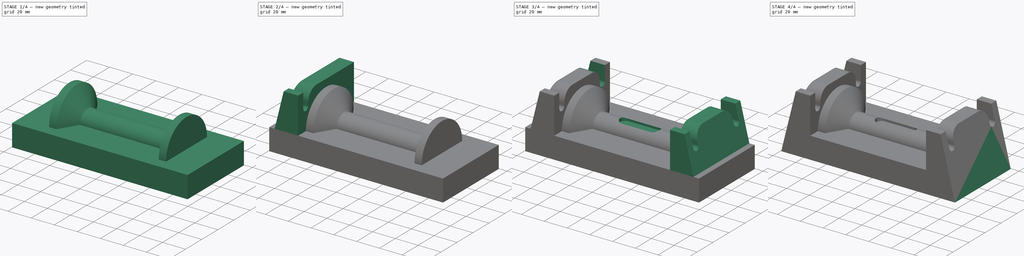
[diagram: build sequence overview — one tinted view per stage of 4, left to right]
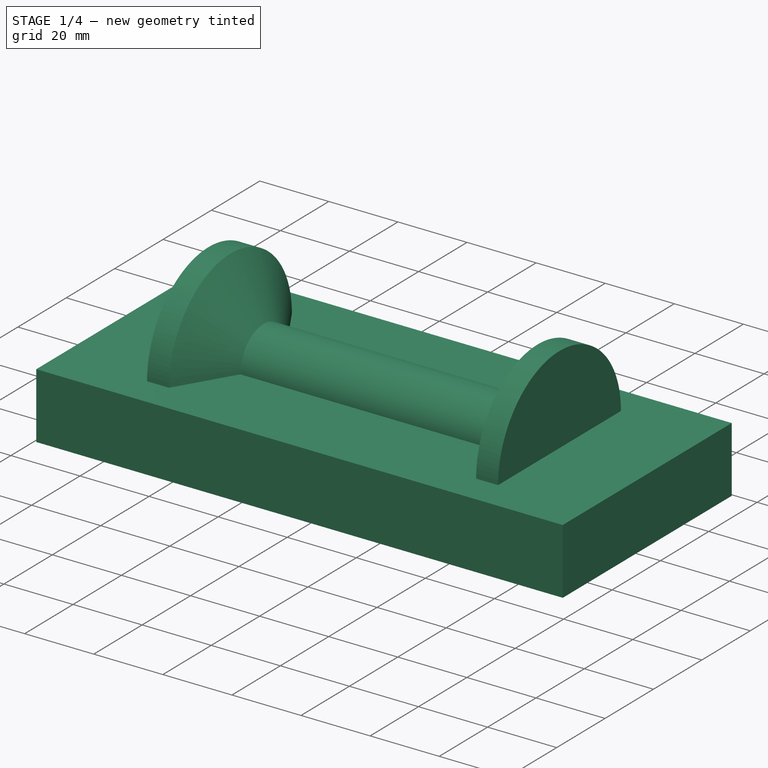
[diagram: stage 1 of 4 — iso view after this stage's code; geometry added in this stage tinted green]
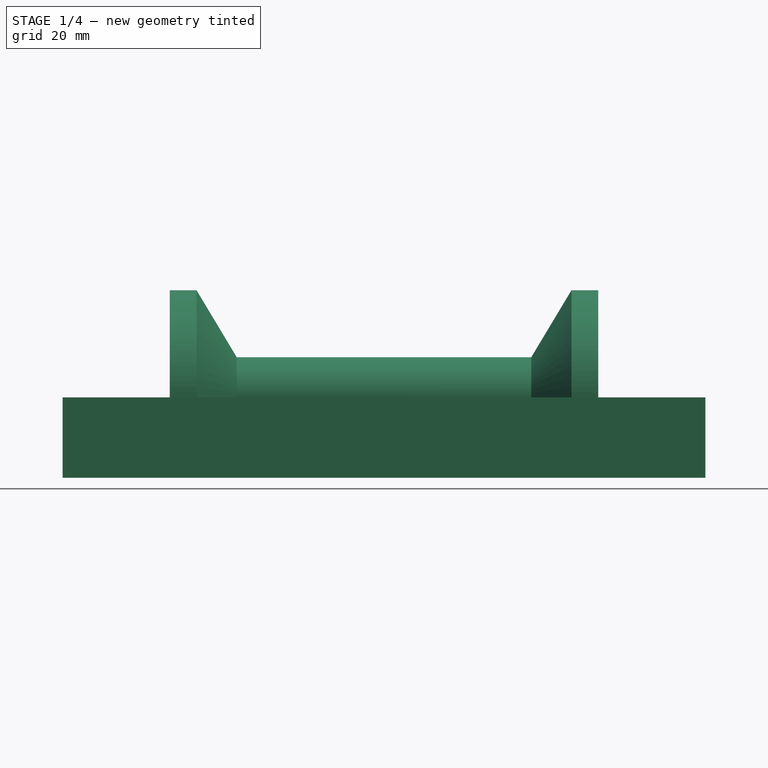
[diagram: stage 1 of 4 — front view after this stage's code; geometry added in this stage tinted green]
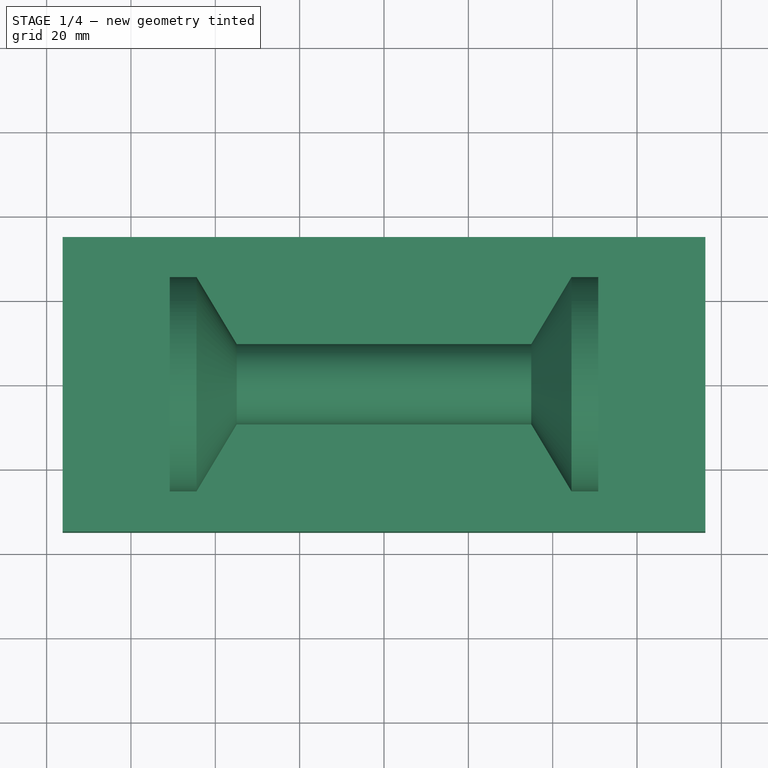
[diagram: stage 1 of 4 — top view after this stage's code; geometry added in this stage tinted green]
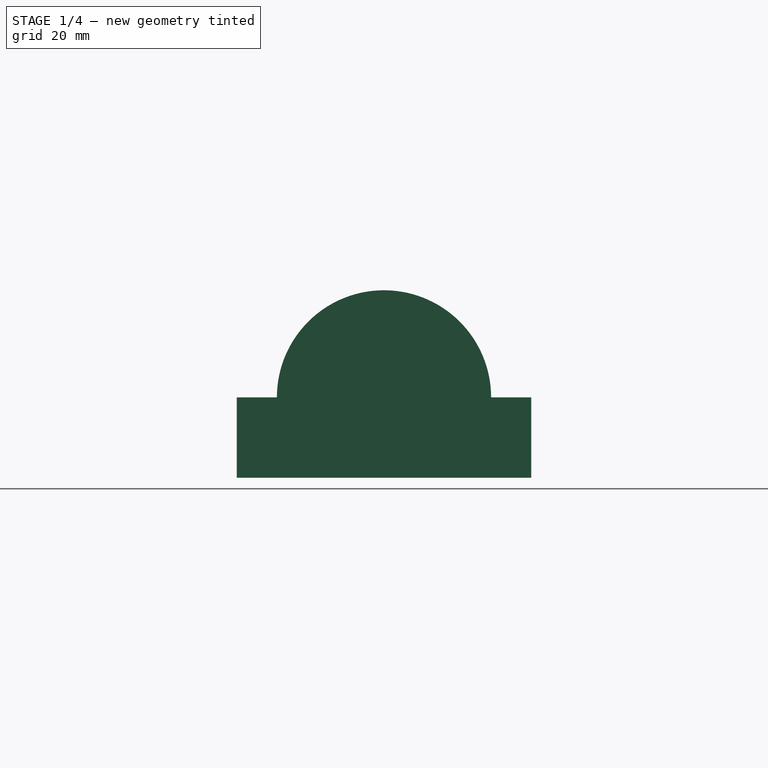
[diagram: stage 1 of 4 — right view after this stage's code; geometry added in this stage tinted green]
FCSTD DOCUMENT  (FreeCAD 1.1R42340 (Git))
Label: 22-T-54-MOLD_INSERT
License: Creative Commons Attribution-NonCommercial-ShareAlike 4.0
LicenseURL: https://creativecommons.org/licenses/by-nc-sa/4.0/
objects: Sketcher::SketchObject×5, PartDesign::Mirrored×4, PartDesign::Pocket×3, PartDesign::Pad×2, App::Point×1, PartDesign::Revolution×1, PartDesign::Body×1, App::TextDocument×1
note: 37 computed .brp shape members not serialized (recipe doc carries the construction recipe); baked Part::Feature solids carry a one-line shape summary decoded from their .brp

FEATURE [App::Point] Origin001
  Role = Origin
FEATURE [Sketcher::SketchObject] Sketch
  ArcFitTolerance = 1e-06
  AttachmentSupport = -> [Origin]
  ExternalTypes = [0]
  FullyConstrained = true
  MakeInternals = false
  MapMode = 5
  expr: Constraints[19] = 0.375 in
  expr: Constraints[20] = 1 in
  sketch-geometry (8):
    g0: LineSegment StartX=-50.8 StartY=0 StartZ=0 EndX=-50.8 EndY=25.4 EndZ=0
    g1: LineSegment StartX=-50.8 StartY=25.4 StartZ=0 EndX=-44.45 EndY=25.4 EndZ=0
    g2: LineSegment StartX=-44.45 StartY=25.4 StartZ=0 EndX=-34.925 EndY=9.525 EndZ=0
    g3: LineSegment StartX=-34.925 StartY=9.525 StartZ=0 EndX=34.925 EndY=9.525 EndZ=0
    g4: LineSegment StartX=34.925 StartY=9.525 StartZ=0 EndX=44.45 EndY=25.4 EndZ=0
    g5: LineSegment StartX=44.45 StartY=25.4 StartZ=0 EndX=50.8 EndY=25.4 EndZ=0
    g6: LineSegment StartX=50.8 StartY=25.4 StartZ=0 EndX=50.8 EndY=0 EndZ=0
    g7: LineSegment StartX=50.8 StartY=0 StartZ=0 EndX=-50.8 EndY=0 EndZ=0
  constraints (21):
    c: PointOnObject(g0,g-1)
    c: Vertical(g0)
    c: Coincident(g0,g1)
    c: Horizontal(g1)
    c: Coincident(g1,g2)
    c: Coincident(g2,g3)
    c: Coincident(g3,g4)
    c: Coincident(g4,g5)
    c: Horizontal(g5)
    c: Coincident(g5,g6)
    c: Vertical(g6)
    c: Coincident(g6,g7)
    c: Coincident(g7,g0)
    c: DistanceX(g3,g3) = 69.85
    c: Symmetric(g2,g3,g-2)
    c: Symmetric(g4,g1,g-2)
    c: Symmetric(g6,g0,g-2)
    c: DistanceX(g1,g4) = 88.9
    c: DistanceX(g0,g5) = 101.6
    c: Distance(g3,g7) = 9.525
    c: Distance(g0,g0) = 25.4
FEATURE [PartDesign::Revolution] Revolution
  Angle = 180
  Angle2 = 60
  Axis = (1,0,0)
  Base = (0,0,0)
  Profile = -> Sketch
  ReferenceAxis = -> X_Axis
  Refine = true
  Suppressed = false
  Type = 0
FEATURE [Sketcher::SketchObject] Sketch001
  ArcFitTolerance = 1e-06
  AttachmentSupport = -> [Origin]
  ExternalTypes = [0]
  FullyConstrained = true
  MakeInternals = false
  MapMode = 5
  expr: Constraints[10] = 2.75 in
  expr: Constraints[11] = 6 in
  sketch-geometry (5):
    g0: LineSegment StartX=76.2 StartY=-34.925 StartZ=0 EndX=76.2 EndY=34.925 EndZ=0
    g1: LineSegment StartX=76.2 StartY=34.925 StartZ=0 EndX=-76.2 EndY=34.925 EndZ=0
    g2: LineSegment StartX=-76.2 StartY=34.925 StartZ=0 EndX=-76.2 EndY=-34.925 EndZ=0
    g3: LineSegment StartX=-76.2 StartY=-34.925 StartZ=0 EndX=76.2 EndY=-34.925 EndZ=0
    g4: GeomPoint [constr] X=0 Y=0 Z=0
  constraints (12):
    c: Coincident(g0,g1)
    c: Coincident(g1,g2)
    c: Coincident(g2,g3)
    c: Coincident(g3,g0)
    c: Vertical(g0)
    c: Vertical(g2)
    c: Horizontal(g1)
    c: Horizontal(g3)
    c: Symmetric(g2,g0,g4)
    c: Coincident(g4,g-1)
    c: DistanceY(g2,g2) = 69.85
    c: DistanceX(g1,g1) = 152.4
FEATURE [PartDesign::Pad] Pad
  BaseFeature = -> Revolution
  Direction = (0,0,1)
  Length = 19.05
  Length2 = 10
  Profile = -> Sketch001
  ReferenceAxis = -> Sketch001 [N_Axis]
  Refine = true
  Reversed = true
  Suppressed = false
  Type = 0
  expr: Length = 0.75 in
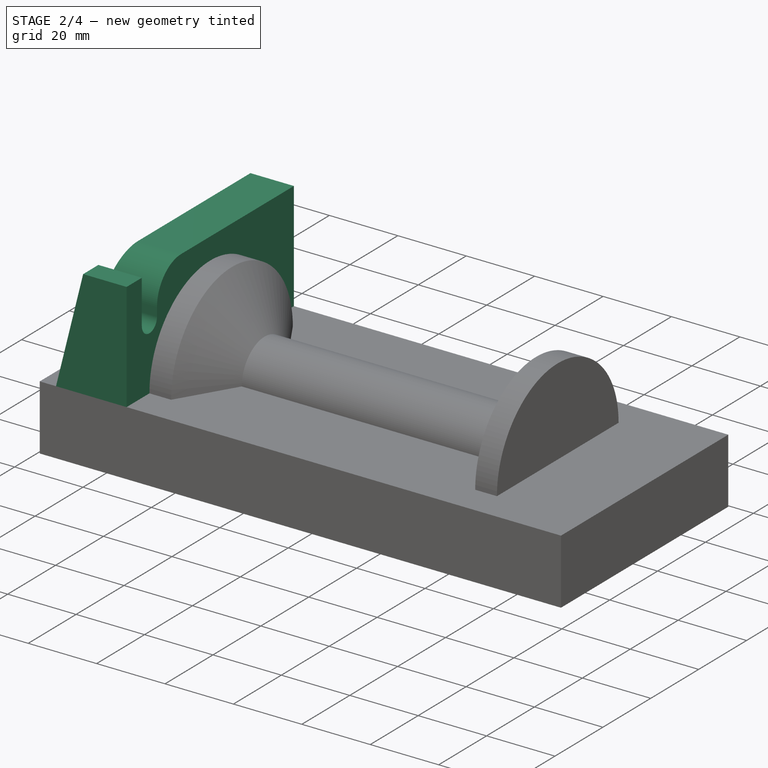
[diagram: stage 2 of 4 — iso view after this stage's code; geometry added in this stage tinted green]
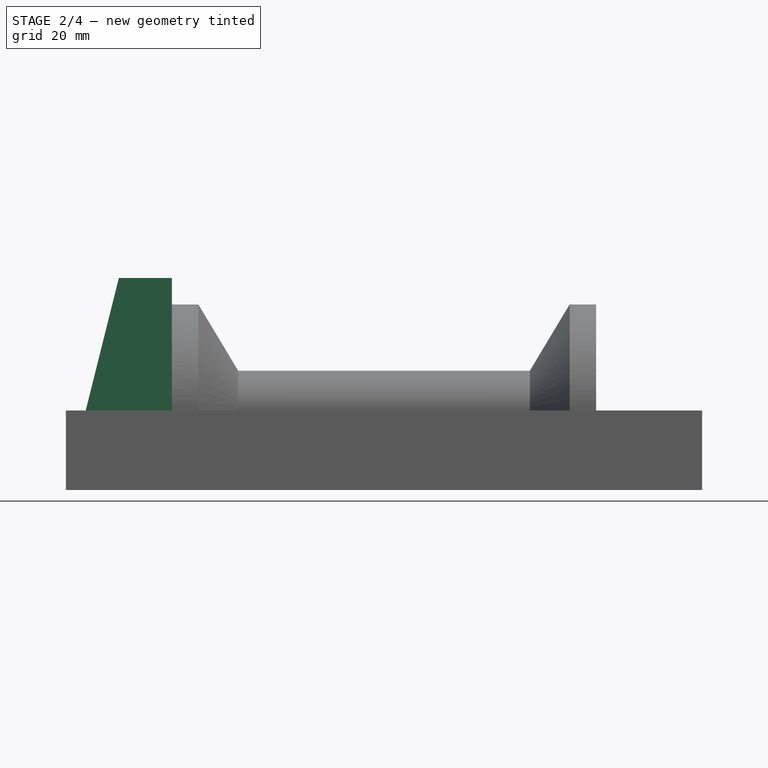
[diagram: stage 2 of 4 — front view after this stage's code; geometry added in this stage tinted green]
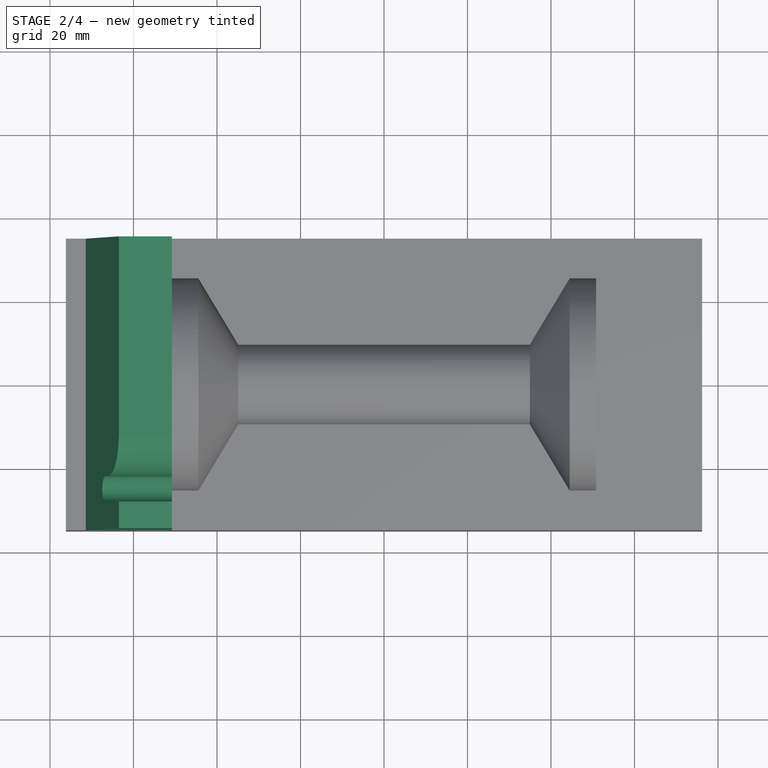
[diagram: stage 2 of 4 — top view after this stage's code; geometry added in this stage tinted green]
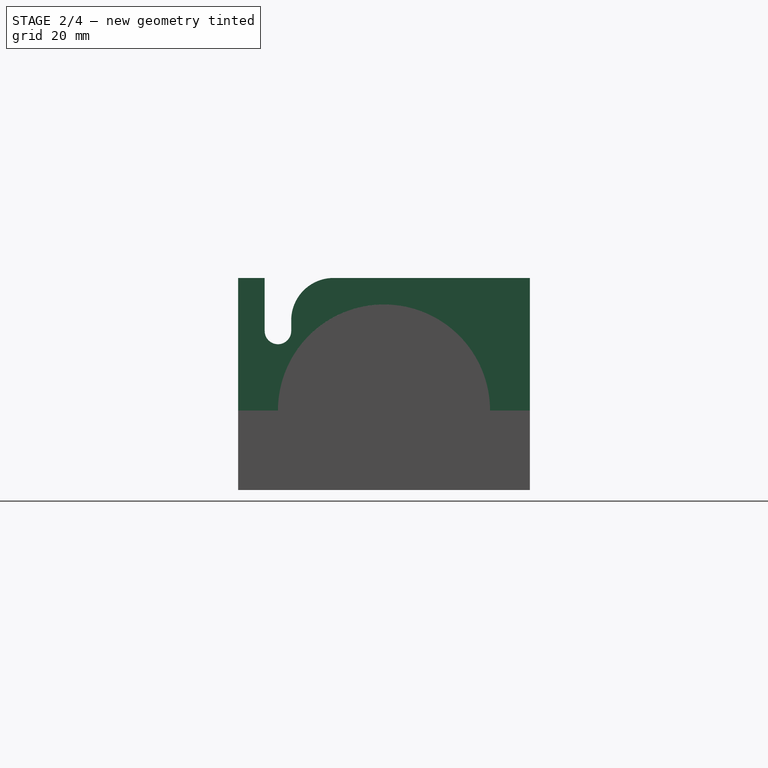
[diagram: stage 2 of 4 — right view after this stage's code; geometry added in this stage tinted green]
FEATURE [Sketcher::SketchObject] Sketch002
  ArcFitTolerance = 1e-06
  AttachmentSupport = -> [Origin]
  ExternalGeometry = -> [Pad]
  ExternalTypes = [0,0]
  FullyConstrained = true
  MakeInternals = false
  MapMode = 5
  Placement = pos=(0,0,0) rot=(1,0,0;1.5708rad)
  expr: Constraints[10] = 2.5 in
  expr: Constraints[9] = 2 in
  sketch-geometry (4):
    g0: LineSegment StartX=-76.2 StartY=-19.05 StartZ=0 EndX=-63.5 EndY=31.75 EndZ=0
    g1: LineSegment StartX=-63.5 StartY=31.75 StartZ=0 EndX=-50.8 EndY=31.75 EndZ=0
    g2: LineSegment StartX=-50.8 StartY=31.75 StartZ=0 EndX=-50.8 EndY=-19.05 EndZ=0
    g3: LineSegment StartX=-50.8 StartY=-19.05 StartZ=0 EndX=-76.2 EndY=-19.05 EndZ=0
  constraints (11):
    c: Coincident(g-4,g0)
    c: Coincident(g0,g1)
    c: Horizontal(g1)
    c: Coincident(g1,g2)
    c: PointOnObject(g2,g-4)
    c: Vertical(g2)
    c: Coincident(g2,g3)
    c: Coincident(g3,g0)
    c: PointOnObject(g-3,g2)
    c: DistanceY(g2,g2) = 50.8
    c: DistanceX(g0,g-1) = 63.5
FEATURE [PartDesign::Pad] Pad001
  BaseFeature = -> Pad
  Direction = (0,-1,2e-16)
  Length = 10
  Length2 = 10
  Midplane = true
  Profile = -> Sketch002
  ReferenceAxis = -> Sketch002 [N_Axis]
  Refine = true
  Suppressed = false
  Type = 3
  UpToFace = -> Pad [Face6]
FEATURE [PartDesign::Mirrored] Mirrored
  BaseFeature = -> Pad001
  MirrorPlane = -> XZ_Plane
  Originals = -> [Pad001]
  Refine = true
  Suppressed = false
  TransformMode = 0
FEATURE [Sketcher::SketchObject] Sketch003
  ArcFitTolerance = 1e-06
  AttachmentSupport = -> [Origin]
  ExternalTypes = [0]
  FullyConstrained = true
  MakeInternals = false
  MapMode = 5
  Placement = pos=(0,0,0) rot=(0.57735,0.57735,0.57735;2.0944rad)
  expr: Constraints[10] = 0.5 in
  expr: Constraints[11] = 0.4 in
  expr: Constraints[8] = 0.25 in
  expr: Constraints[9] = 1 in
  sketch-geometry (5):
    g0: LineSegment StartX=-28.575 StartY=31.75 StartZ=0 EndX=-28.575 EndY=19.05 EndZ=0
    g1: ArcOfCircle CenterX=-25.4 CenterY=19.05 CenterZ=0 NormalX=0 NormalY=0 NormalZ=1 AngleXU=0 Radius=3.175 StartAngle=3.14159 EndAngle=6.28319
    g2: LineSegment StartX=-22.225 StartY=19.05 StartZ=0 EndX=-22.225 EndY=21.59 EndZ=0
    g3: ArcOfCircle CenterX=-12.065 CenterY=21.59 CenterZ=0 NormalX=0 NormalY=0 NormalZ=1 AngleXU=0 Radius=10.16 StartAngle=1.5708 EndAngle=3.14159
    g4: LineSegment StartX=-28.575 StartY=31.75 StartZ=0 EndX=-12.065 EndY=31.75 EndZ=0
  constraints (13):
    c: PointOnObject(g0,g-3)
    c: Vertical(g0)
    c: Tangent(g0,g1) = -1.5708
    c: Tangent(g1,g2) = -1.5708
    c: Tangent(g2,g3) = 1.5708
    c: Coincident(g4,g0)
    c: Coincident(g4,g3)
    c: Vertical(g2)
    c: Distance(g2,g0) = 6.35
    c: Distance(g1,g-2) = 25.4
    c: DistanceY(g0,g0) = 12.7
    c: Radius(g3) = 10.16
    c: Tangent(g3,g-3) = 1.5708
FEATURE [PartDesign::Pocket] Pocket001
  BaseFeature = -> Mirrored
  Direction = (-1,0,0)
  Length = 5
  Length2 = 5
  Midplane = true
  Profile = -> Sketch003
  ReferenceAxis = -> Sketch003 [N_Axis]
  Refine = true
  Suppressed = false
  Type = 1
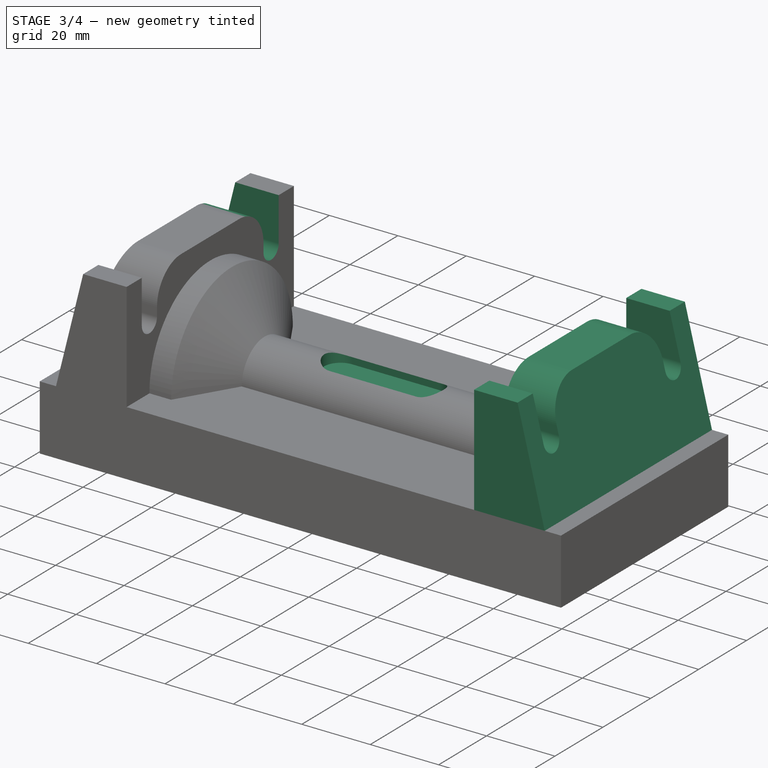
[diagram: stage 3 of 4 — iso view after this stage's code; geometry added in this stage tinted green]
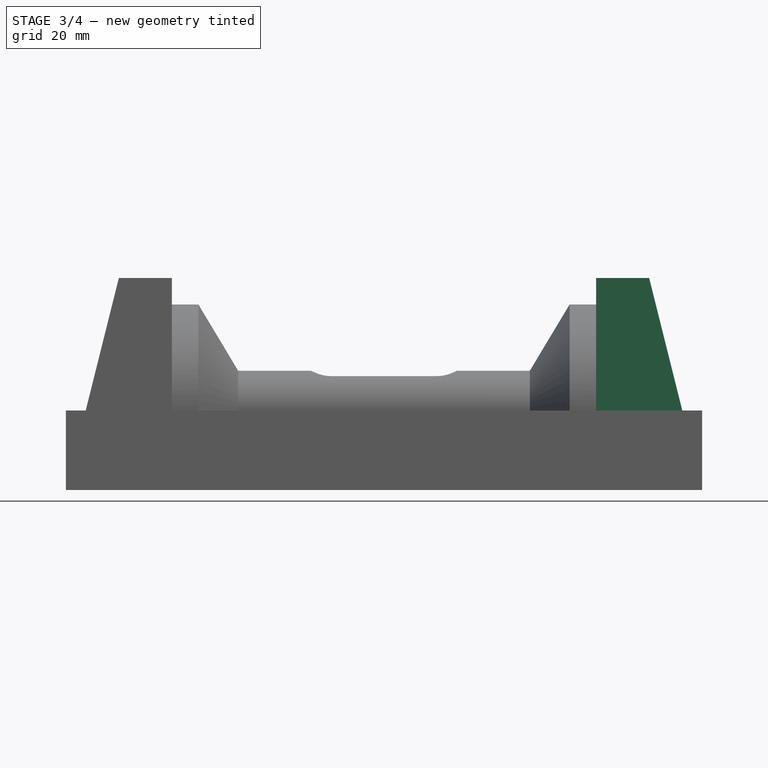
[diagram: stage 3 of 4 — front view after this stage's code; geometry added in this stage tinted green]
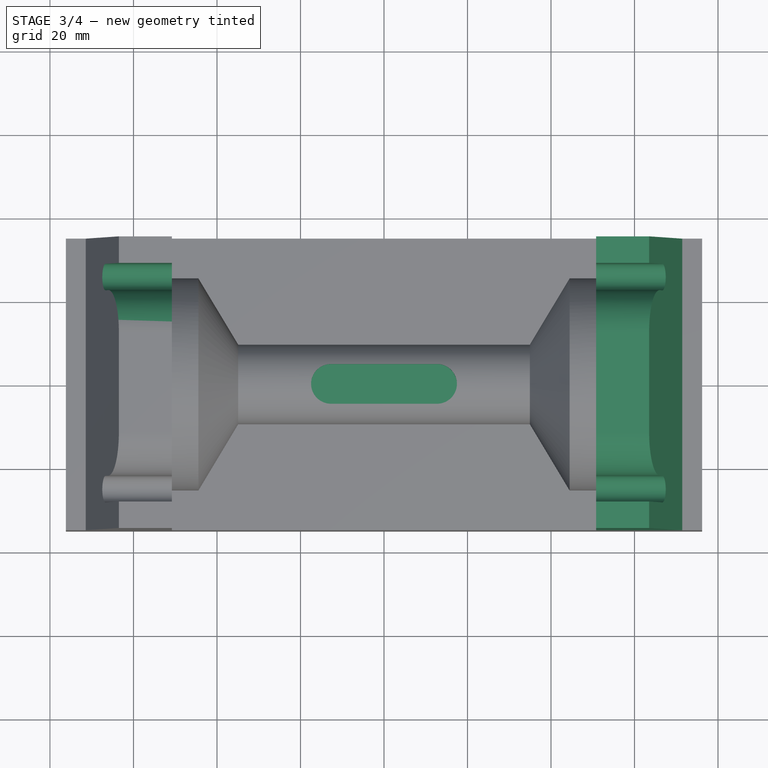
[diagram: stage 3 of 4 — top view after this stage's code; geometry added in this stage tinted green]
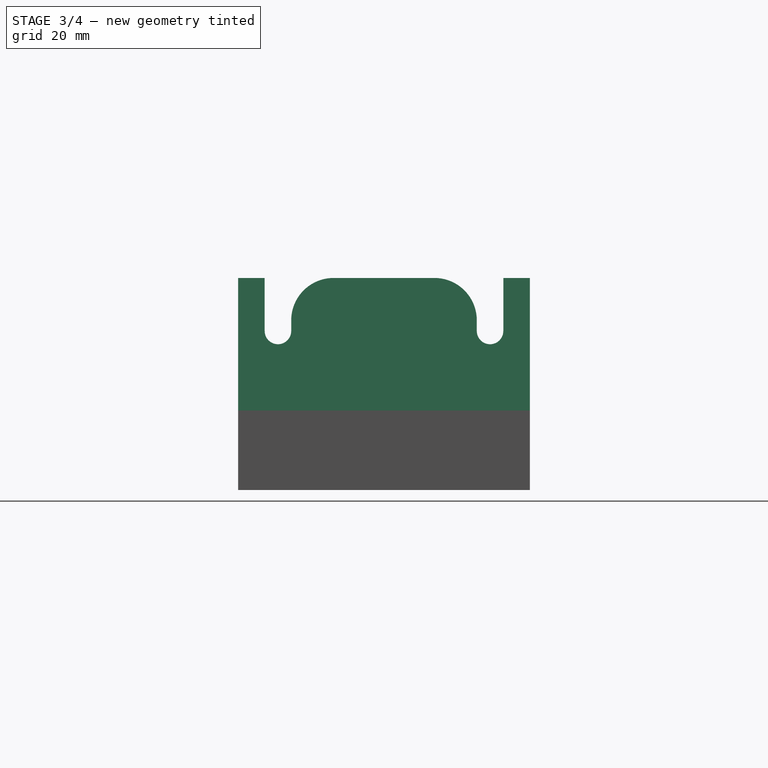
[diagram: stage 3 of 4 — right view after this stage's code; geometry added in this stage tinted green]
FEATURE [PartDesign::Mirrored] Mirrored001
  BaseFeature = -> Pocket001
  MirrorPlane = -> Sketch003 [V_Axis]
  Originals = -> [Pocket001]
  Refine = true
  Suppressed = false
  TransformMode = 0
FEATURE [Sketcher::SketchObject] Sketch004
  ArcFitTolerance = 1e-06
  AttachmentOffset = pos=(0,0,-25.4) rot=(0,0,1;0rad)
  AttachmentSupport = -> [Mirrored001]
  ExternalTypes = [0]
  FullyConstrained = true
  MakeInternals = false
  MapMode = 5
  Placement = pos=(0,0,6.35) rot=(1,0,0;3.14159rad)
  expr: Constraints[5] = 1 in
  expr: Constraints[6] = 0.375 in / 2
  sketch-geometry (4):
    g0: ArcOfCircle CenterX=12.7 CenterY=0 CenterZ=0 NormalX=0 NormalY=0 NormalZ=1 AngleXU=0 Radius=4.7625 StartAngle=4.71239 EndAngle=7.85398
    g1: ArcOfCircle CenterX=-12.7 CenterY=0 CenterZ=0 NormalX=0 NormalY=0 NormalZ=1 AngleXU=0 Radius=4.7625 StartAngle=1.5708 EndAngle=4.71239
    g2: LineSegment StartX=12.7 StartY=-4.7625 StartZ=0 EndX=-12.7 EndY=-4.7625 EndZ=0
    g3: LineSegment StartX=12.7 StartY=4.7625 StartZ=0 EndX=-12.7 EndY=4.7625 EndZ=0
  constraints (9):
    c: Tangent(g0,g2) = 1.5708
    c: Tangent(g0,g3) = -1.5708
    c: Tangent(g1,g2) = 1.5708
    c: Tangent(g1,g3) = -1.5708
    c: Equal(g0,g1)
    c: DistanceX(g3,g3) = 25.4
    c: Radius(g0) = 4.7625
    c: Symmetric(g1,g0,g-2)
    c: PointOnObject(g0,g-1)
FEATURE [PartDesign::Pocket] Pocket002
  BaseFeature = -> Mirrored001
  Direction = (0,0,1)
  Length = 5
  Length2 = 5
  Profile = -> Sketch004
  ReferenceAxis = -> Sketch004 [N_Axis]
  Refine = true
  Suppressed = false
  Type = 1
FEATURE [PartDesign::Mirrored] Mirrored002
  BaseFeature = -> Pocket002
  MirrorPlane = -> Sketch004 [V_Axis]
  Originals = -> [Pocket002]
  Refine = true
  Suppressed = false
  TransformMode = 1
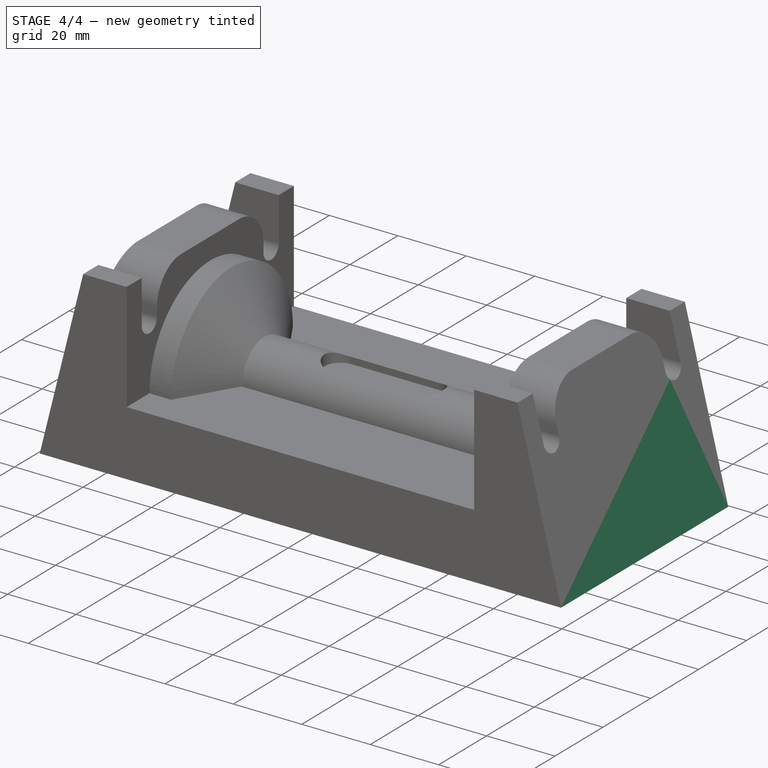
[diagram: stage 4 of 4 — iso view after this stage's code; geometry added in this stage tinted green]
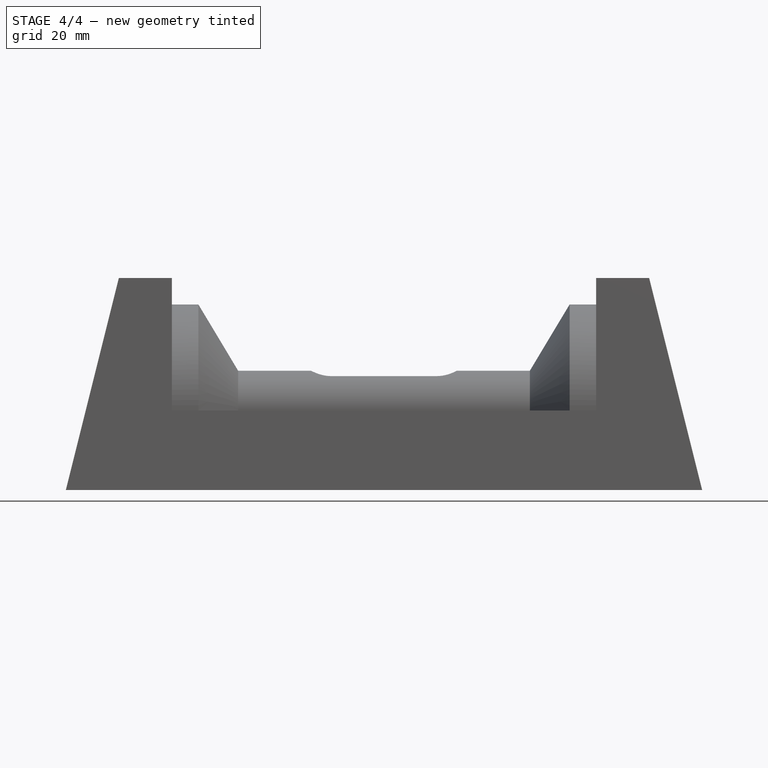
[diagram: stage 4 of 4 — front view after this stage's code; geometry added in this stage tinted green]
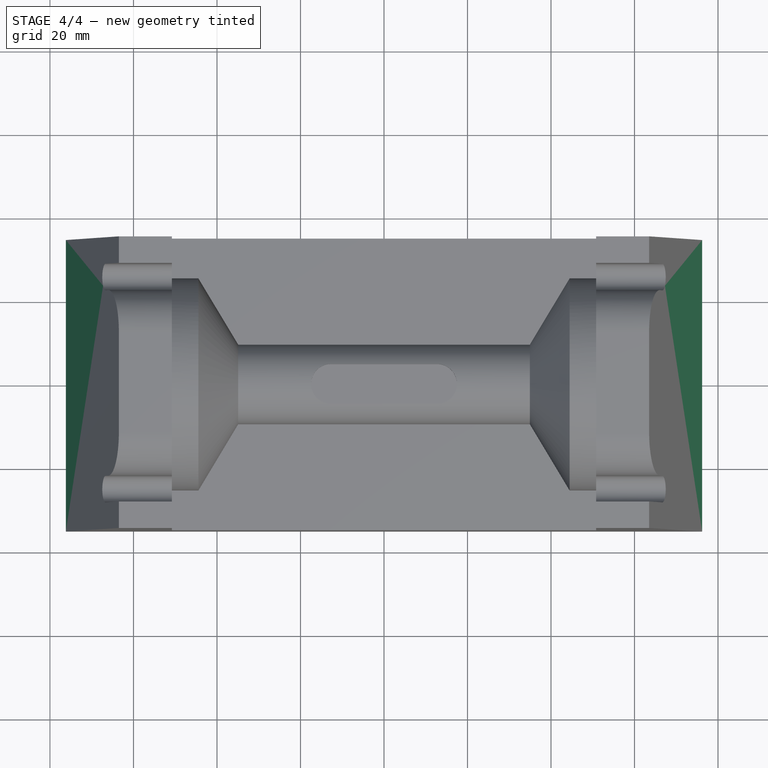
[diagram: stage 4 of 4 — top view after this stage's code; geometry added in this stage tinted green]
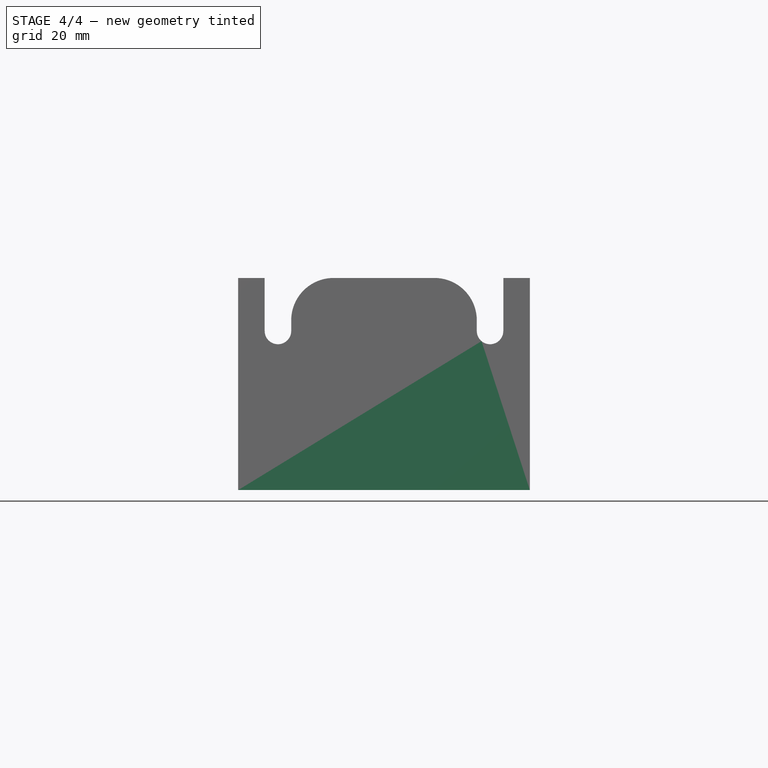
[diagram: stage 4 of 4 — right view after this stage's code; geometry added in this stage tinted green]
FEATURE [PartDesign::Pocket] Pocket
  BaseFeature = -> Mirrored002
  Direction = (0,0,-1)
  Length = 5
  Length2 = 5
  Profile = -> Mirrored002 [Face26]
  ReferenceAxis = -> Mirrored002 [Edge81]
  Refine = true
  Suppressed = false
  Type = 1
FEATURE [PartDesign::Mirrored] Mirrored003
  BaseFeature = -> Pocket
  MirrorPlane = -> YZ_Plane
  Originals = -> [Pocket]
  Refine = true
  Suppressed = false
  TransformMode = 0
FEATURE [PartDesign::Body] Body
  AllowCompound = true
  Group = -> [Sketch,Revolution,Sketch001,Pad,Sketch002,Pad001,Mirrored,Sketch003,Pocket001,Mirrored001,Sketch004,Pocket002,Mirrored002,Pocket,Mirrored003]
  Origin = -> Origin
  Tip = -> Mirrored003
FEATURE [App::TextDocument] Text_document  label="README"
  Text = uggly model, but I don't want to rework an IPS model
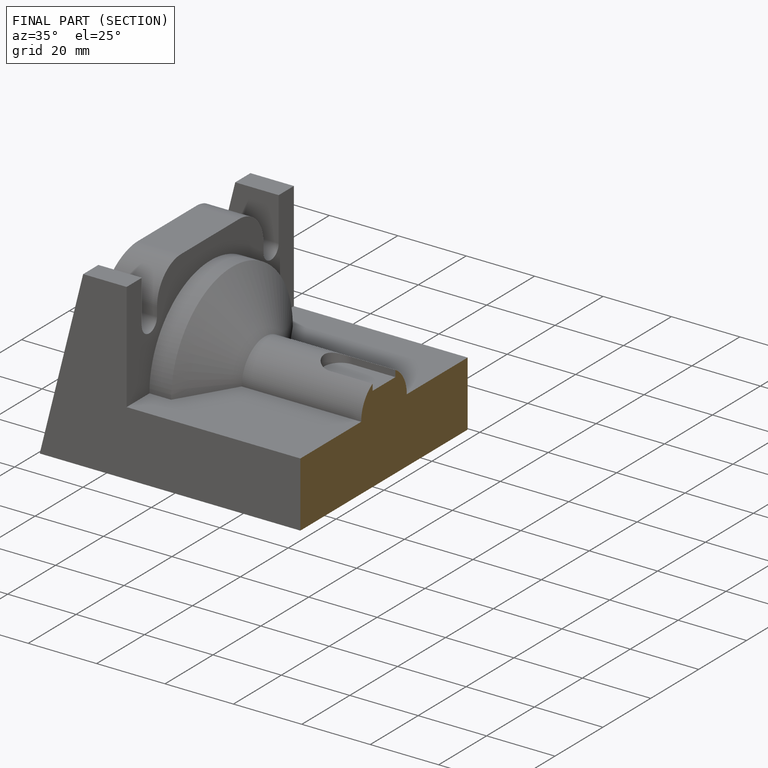
[diagram: finished part — half-section view (interior)]
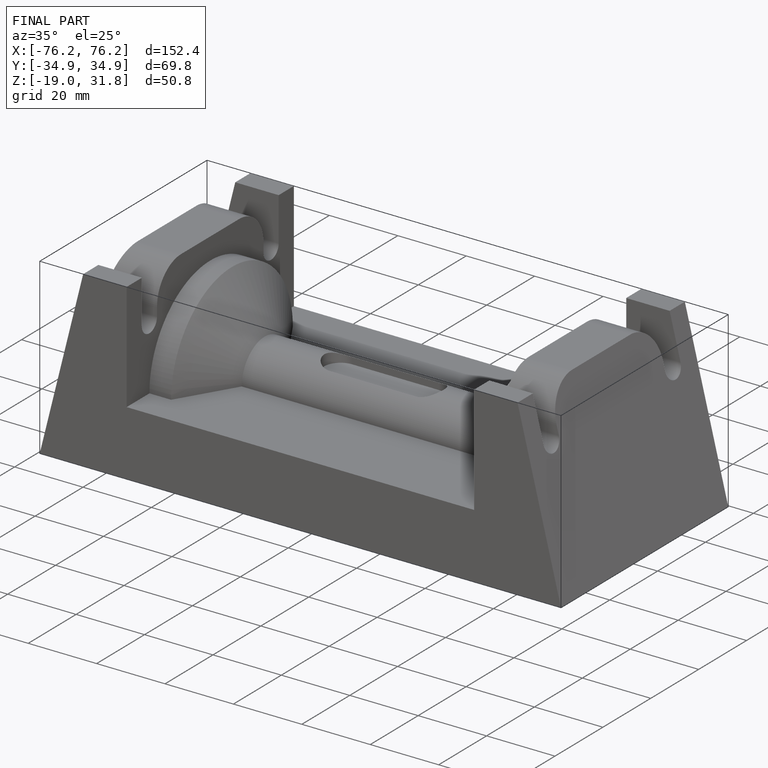
[diagram: finished part — iso view with bounding-box wireframe]
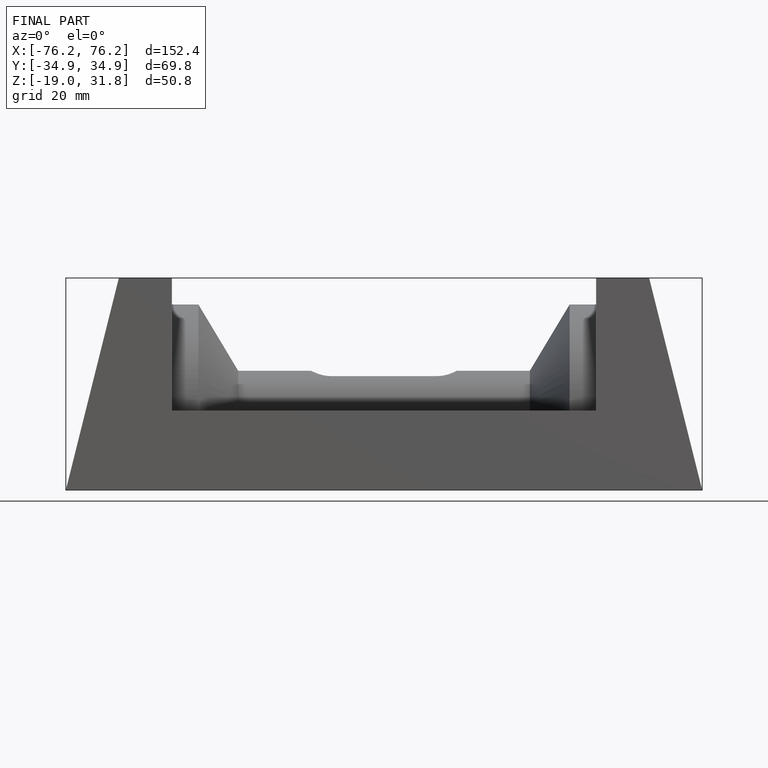
[diagram: finished part — front view with bounding-box wireframe]
